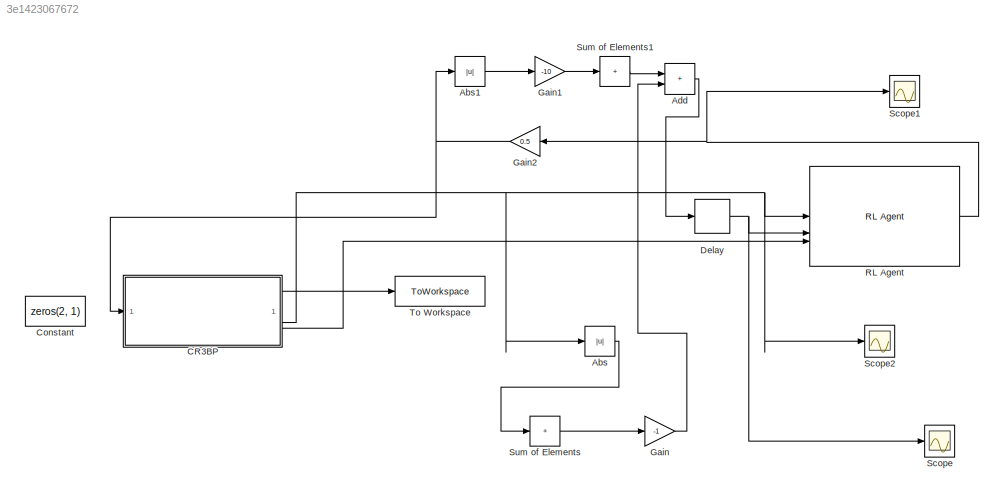
MODEL slx_3e1423067672
KIND model
CONFIG AbsTol = auto
CONFIG EnableMultiTasking = off
CONFIG FixedStep = 0.001
CONFIG MaxStep = auto
CONFIG MinStep = auto
CONFIG RelTol = 1e-3
CONFIG SampleTimeConstraint = Unconstrained
CONFIG SolverName = ode4
CONFIG StartTime = 0.0
CONFIG StopTime = 5
BLOCK [Abs] Abs
  SaturateOnIntegerOverflow = off
BLOCK [Abs] Abs1
  SaturateOnIntegerOverflow = off
BLOCK [Sum] Add
  IconShape = rectangular
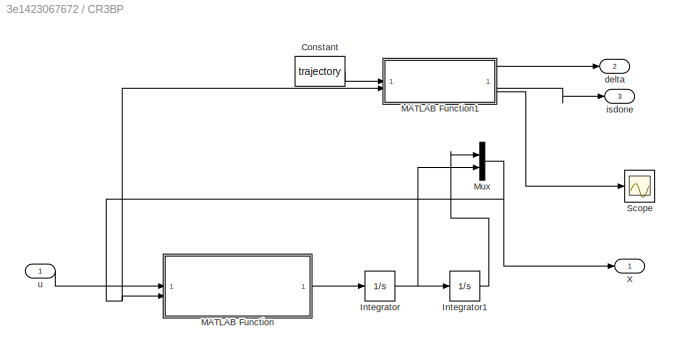
BLOCK [SubSystem] CR3BP
BLOCK [Constant] CR3BP/Constant
  Value = trajectory
BLOCK [Integrator] CR3BP/Integrator
  InitialCondition = dot_X0
BLOCK [Integrator] CR3BP/Integrator1
  InitialCondition = X0
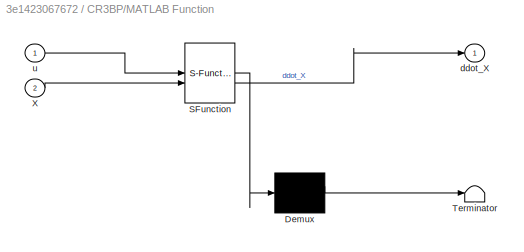
BLOCK [SubSystem] CR3BP/MATLAB Function
  ErrorFcn = Stateflow.Translate.translate
  LibrarySourceBlock = simulink/User-Defined\nFunctions/MATLAB Function
  PermitHierarchicalResolution = ExplicitOnly
  SFBlockType = MATLAB Function
  TreatAsAtomicUnit = on
BLOCK [Demux] CR3BP/MATLAB Function/ Demux 
  Outputs = 1
BLOCK [S-Function] CR3BP/MATLAB Function/ SFunction 
  EnableBusSupport = on
  FunctionName = sf_sfun
  PortCounts = [2 2]
  SFcnIsStateOwnerBlock = off
  SFunctionDeploymentMode = off
  Tag = Stateflow S-Function 2
BLOCK [Terminator] CR3BP/MATLAB Function/ Terminator 
BLOCK [Inport] CR3BP/MATLAB Function/X
  Port = 2
BLOCK [Outport] CR3BP/MATLAB Function/ddot_X
BLOCK [Inport] CR3BP/MATLAB Function/u
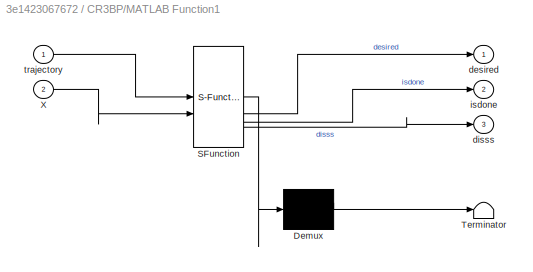
BLOCK [SubSystem] CR3BP/MATLAB Function1
  ErrorFcn = Stateflow.Translate.translate
  LibrarySourceBlock = simulink/User-Defined\nFunctions/MATLAB Function
  PermitHierarchicalResolution = ExplicitOnly
  SFBlockType = MATLAB Function
  TreatAsAtomicUnit = on
BLOCK [Demux] CR3BP/MATLAB Function1/ Demux 
  Outputs = 1
BLOCK [S-Function] CR3BP/MATLAB Function1/ SFunction 
  EnableBusSupport = on
  FunctionName = sf_sfun
  PortCounts = [2 4]
  SFcnIsStateOwnerBlock = off
  SFunctionDeploymentMode = off
  Tag = Stateflow S-Function 1
BLOCK [Terminator] CR3BP/MATLAB Function1/ Terminator 
BLOCK [Inport] CR3BP/MATLAB Function1/X
  Port = 2
BLOCK [Outport] CR3BP/MATLAB Function1/desired
BLOCK [Outport] CR3BP/MATLAB Function1/disss
  Port = 3
BLOCK [Outport] CR3BP/MATLAB Function1/isdone
  Port = 2
BLOCK [Inport] CR3BP/MATLAB Function1/trajectory
BLOCK [Mux] CR3BP/Mux
  DisplayOption = bar
  Inputs = 2
BLOCK [Scope] CR3BP/Scope
  Floating = off
  NumInputPorts = 1
  ScopeSpecificationString = Simulink.scopes.TimeScopeBlockCfg('CurrentConfiguration', extmgr.ConfigurationSet(extmgr.Configuration('Core','General UI',true),extmgr.Configuration('Core','Source UI',true),extmgr.Configuration('Sources','WiredSimulink',true,'DataLoggingVariableName','ScopeData1'),extmgr.Configuration('Visuals','Time Domain',true,'SerializedDisplays',{struct('MinYLimReal','0.03578','MaxYLimReal','0.34932','YLabe...<+1379ch>
BLOCK [Outport] CR3BP/X
BLOCK [Outport] CR3BP/delta
  Port = 2
BLOCK [Outport] CR3BP/isdone
  Port = 3
BLOCK [Inport] CR3BP/u
BLOCK [Constant] Constant
  Value = zeros(2, 1)
BLOCK [Delay] Delay
  DelayLength = 1
  InputPortMap = u0
BLOCK [Gain] Gain
  Gain = -1
BLOCK [Gain] Gain1
  Gain = -10
BLOCK [Gain] Gain2
  Gain = 0.5
  NameLocation = top
BLOCK [Reference] RL Agent  REF=rllib/RL Agent
  SourceBlock = rllib/RL Agent
  SourceType = RL Agent
BLOCK [Scope] Scope
  Floating = off
  NumInputPorts = 1
  ScopeSpecificationString = Simulink.scopes.TimeScopeBlockCfg('CurrentConfiguration', extmgr.ConfigurationSet(extmgr.Configuration('Core','General UI',true),extmgr.Configuration('Core','Source UI',true),extmgr.Configuration('Sources','WiredSimulink',true),extmgr.Configuration('Visuals','Time Domain',true,'SerializedDisplays',{struct('MinYLimReal','-557.29223','MaxYLimReal','61.92136','YLabelReal','','MinYLimMag',' 0.00000','...<+1356ch>
BLOCK [Scope] Scope1
  Floating = off
  NumInputPorts = 1
  ScopeSpecificationString = Simulink.scopes.TimeScopeBlockCfg('CurrentConfiguration', extmgr.ConfigurationSet(extmgr.Configuration('Core','General UI',true),extmgr.Configuration('Core','Source UI',true),extmgr.Configuration('Sources','WiredSimulink',true,'DataLoggingVariableName','ScopeData1'),extmgr.Configuration('Visuals','Time Domain',true,'SerializedDisplays',{struct('MinYLimReal','-1.25','MaxYLimReal','1.25','YLabelReal...<+1443ch>
BLOCK [Scope] Scope2
  Floating = off
  NumInputPorts = 1
  ScopeSpecificationString = Simulink.scopes.TimeScopeBlockCfg('CurrentConfiguration', extmgr.ConfigurationSet(extmgr.Configuration('Core','General UI',true),extmgr.Configuration('Core','Source UI',true),extmgr.Configuration('Sources','WiredSimulink',true,'DataLoggingVariableName','ScopeData2'),extmgr.Configuration('Visuals','Time Domain',true,'SerializedDisplays',{struct('MinYLimReal','-813.34459','MaxYLimReal','1104.49292',...<+1446ch>
BLOCK [Sum] Sum of Elements
  IconShape = rectangular
  Inputs = +
BLOCK [Sum] Sum of Elements1
  IconShape = rectangular
  Inputs = +
BLOCK [ToWorkspace] To Workspace
  FixptAsFi = on
  MaxDataPoints = inf
  SampleTime = -1
  SaveFormat = Timeseries
  VariableName = X
LINE Abs1:1 -> Gain1:1
LINE Abs:1 -> Sum of Elements:1
LINE Add:1 -> Delay:1
LINE CR3BP/Constant:1 -> CR3BP/MATLAB Function1:1
LINE CR3BP/Integrator1:1 -> CR3BP/Mux:1
NET CR3BP/Integrator:1 -> CR3BP/Integrator1:1, CR3BP/Mux:2
LINE CR3BP/MATLAB Function1:1 -> CR3BP/delta:1
LINE CR3BP/MATLAB Function1:2 -> CR3BP/isdone:1
LINE CR3BP/MATLAB Function1:3 -> CR3BP/Scope:1
LINE CR3BP/MATLAB Function:1 -> CR3BP/Integrator:1
NET CR3BP/Mux:1 -> CR3BP/MATLAB Function1:2, CR3BP/MATLAB Function:2, CR3BP/X:1
LINE CR3BP/u:1 -> CR3BP/MATLAB Function:1
LINE CR3BP:1 -> To Workspace:1
NET CR3BP:2 -> Abs:1, RL Agent:1, Scope2:1
LINE CR3BP:3 -> RL Agent:3
NET Delay:1 -> RL Agent:2, Scope:1
LINE Gain1:1 -> Sum of Elements1:1
NET Gain2:1 -> Abs1:1, CR3BP:1
LINE Gain:1 -> Add:2
NET RL Agent:1 -> Gain2:1, Scope1:1
LINE Sum of Elements1:1 -> Add:1
LINE Sum of Elements:1 -> Gain:1
note: NET lines group one-source signal fan-out (src -> all destinations, sorted); 1:1 wires keep LINE
CHART CR3BP/MATLAB Function1 states=1 transitions=1
  STATE_LABEL 'eML_blk_kernel()'
  STATE_LABEL "SCRIPT:\nfunction [desired, isdone, disss] = fcn(trajectory, X)\n\n\n\nxy = X(1:2);\ndistance = ((trajectory(1:2, :) - xy).^2);\ndist = sum(distance);\ndist = dist';\nindex = dist==min(dist);\nanswer = trajectory(:, index);\n\ndesired = reshape(answer, [4, 1]) - reshape(X, [4, 1]);\ndesired = desired * 100;\n\nisdone = false;\nfinal_point = trajectory(1:2, end);\ndisss = sqrt(sum((xy - final_point).^2));\nif disss ...<+32ch>"
CHART CR3BP/MATLAB Function states=1 transitions=1
  STATE_LABEL 'eML_blk_kernel()'
  STATE_LABEL 'SCRIPT:\nfunction ddot_X = fcn(u, X)\n\nmu = 0.012277471;\n\na_x = u(1);\na_y = u(2);\n\n% Positions\nx = X(1);\ny = X(2);\nz = 0;\n% Velocities\nxdot = X(3);\nydot = X(4);\n\n% distances from particle to primaries\nr1 = sqrt((x+mu)^2 + y^2 + z^2); \nr2 = sqrt((x-1+mu)^2 + y^2 + z^2); \n\n% Accelerations \nxddot = 2*ydot + x -(1-mu)*((x+mu)/(r1^3)) - mu*(x-1+mu)/(r2^3) + a_x;\nyddot = -2*xdot + y - (1-mu)*(y/(r1^3)) - ...<+46ch>'
CHART  states=0 transitions=0
CHART  states=0 transitions=0
